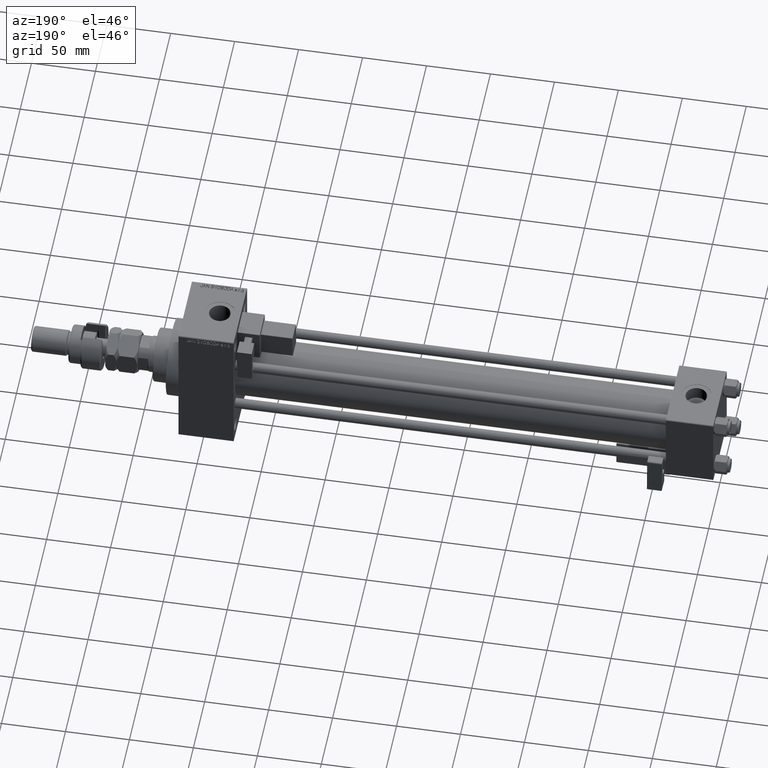
[diagram: clean part render]
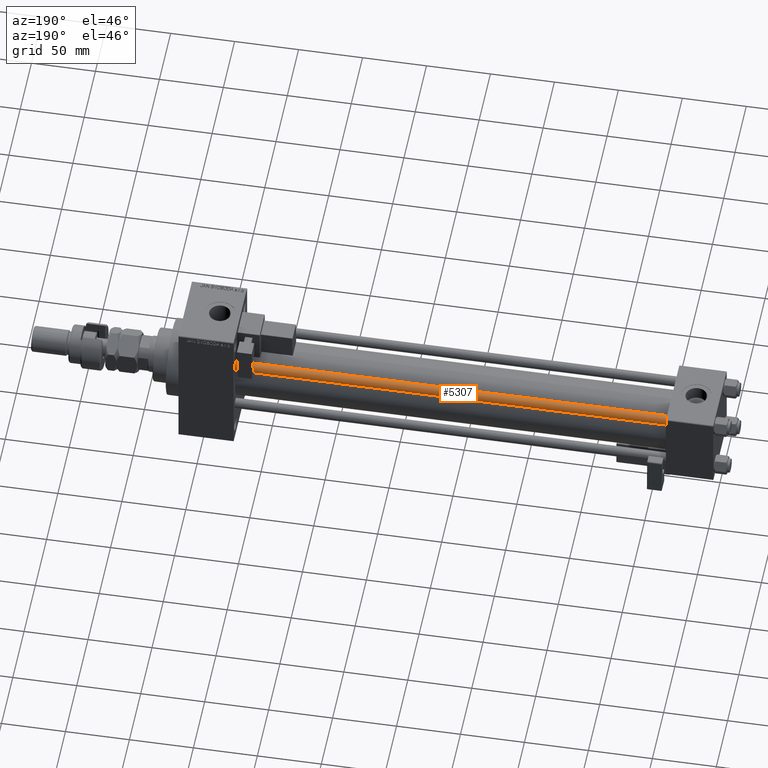
[diagram: same view with one face highlighted and labeled with its STEP entity id]
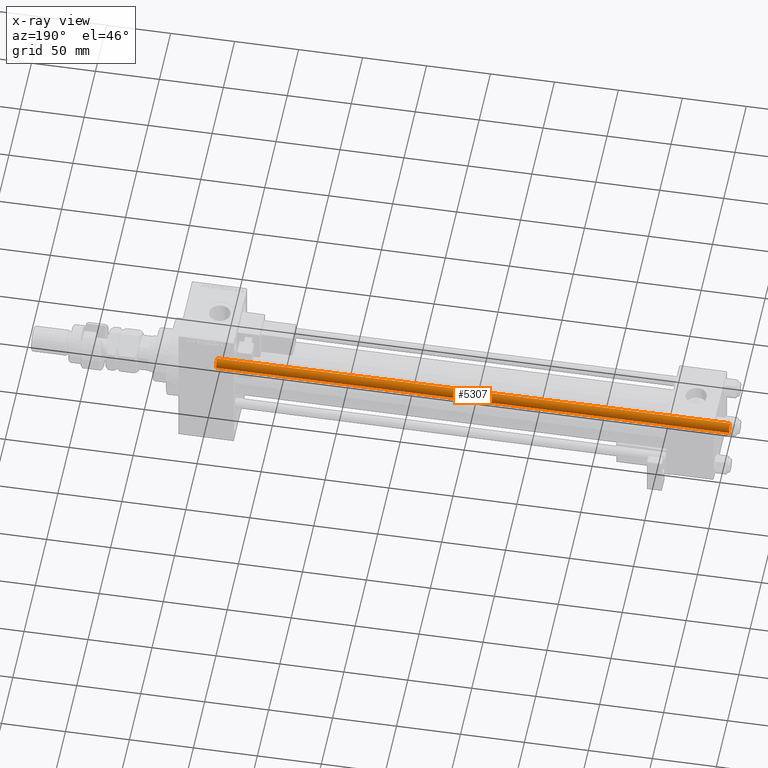
[diagram: x-ray of the same camera — body ghosted, the highlighted face saturated]
A machine part, auxiliary view. The second image highlights one B-rep face of the part: STEP entity #5307.
The next image is the same camera in x-ray: the body ghosted, the highlighted face saturated — about 0% of this face is hidden behind the body in this view.
In plain terms, the highlighted cylindrical surface (edge-blend (fillet) strip) has radius 4 mm, axis along (-1, -0, 0).
Its self-contained STEP definition (entity closure, byte-faithful):
#388 = CARTESIAN_POINT ( 'NONE',  ( 0.000000000000000000, 0.000000000000000000, 0.5000000000000004441 ) ) ;
#4632 = EDGE_LOOP ( 'NONE', ( #25087, #31323, #52019, #23583 ) ) ;
#5293 = VERTEX_POINT ( 'NONE', #30768 ) ;
#5307 = ADVANCED_FACE ( 'NONE', ( #51241 ), #47788, .T. ) ;
#5521 = EDGE_CURVE ( 'NONE', #5293, #8263, #49889, .T. ) ;
#7011 = DIRECTION ( 'NONE',  ( 0.000000000000000000, 0.000000000000000000, -1.000000000000000000 ) ) ;
#8263 = VERTEX_POINT ( 'NONE', #29465 ) ;
#8480 = AXIS2_PLACEMENT_3D ( 'NONE', #26913, #7011, #22660 ) ;
#9950 = AXIS2_PLACEMENT_3D ( 'NONE', #388, #28555, #48769 ) ;
#13466 = DIRECTION ( 'NONE',  ( -0.000000000000000000, -0.000000000000000000, -1.000000000000000000 ) ) ;
#14992 = CIRCLE ( 'NONE', #9950, 4.000000000000000000 ) ;
#16918 = CIRCLE ( 'NONE', #8480, 4.000000000000000000 ) ;
#21950 = CARTESIAN_POINT ( 'NONE',  ( -4.000000000000000000, 0.000000000000000000, 402.0000000000000000 ) ) ;
#22660 = DIRECTION ( 'NONE',  ( 1.000000000000000000, 0.000000000000000000, 0.000000000000000000 ) ) ;
#22689 = VERTEX_POINT ( 'NONE', #30874 ) ;
#23238 = CARTESIAN_POINT ( 'NONE',  ( 4.000000000000000000, 4.898587196589412829E-16, 402.0000000000000000 ) ) ;
#23583 = ORIENTED_EDGE ( 'NONE', *, *, #5521, .F. ) ;
#23731 = EDGE_CURVE ( 'NONE', #22689, #25548, #43712, .T. ) ;
#24705 = EDGE_CURVE ( 'NONE', #25548, #8263, #14992, .T. ) ;
#25087 = ORIENTED_EDGE ( 'NONE', *, *, #45239, .T. ) ;
#25423 = CARTESIAN_POINT ( 'NONE',  ( 4.000000000000000000, 4.898587196589412829E-16, 0.5000000000000004441 ) ) ;
#25548 = VERTEX_POINT ( 'NONE', #25423 ) ;
#26913 = CARTESIAN_POINT ( 'NONE',  ( 0.000000000000000000, 0.000000000000000000, 401.5000000000000568 ) ) ;
#27839 = AXIS2_PLACEMENT_3D ( 'NONE', #43784, #39008, #50720 ) ;
#28555 = DIRECTION ( 'NONE',  ( -0.000000000000000000, -0.000000000000000000, 1.000000000000000000 ) ) ;
#29465 = CARTESIAN_POINT ( 'NONE',  ( -4.000000000000000000, 0.000000000000000000, 0.5000000000000004441 ) ) ;
#30692 = DIRECTION ( 'NONE',  ( -0.000000000000000000, -0.000000000000000000, -1.000000000000000000 ) ) ;
#30768 = CARTESIAN_POINT ( 'NONE',  ( -4.000000000000000000, 0.000000000000000000, 401.5000000000000568 ) ) ;
#30874 = CARTESIAN_POINT ( 'NONE',  ( 4.000000000000000000, 4.898587196589412829E-16, 401.5000000000000568 ) ) ;
#31323 = ORIENTED_EDGE ( 'NONE', *, *, #23731, .T. ) ;
#37168 = VECTOR ( 'NONE', #13466, 1000.000000000000000 ) ;
#39008 = DIRECTION ( 'NONE',  ( -0.000000000000000000, -0.000000000000000000, -1.000000000000000000 ) ) ;
#41301 = VECTOR ( 'NONE', #30692, 1000.000000000000000 ) ;
#43712 = LINE ( 'NONE', #23238, #41301 ) ;
#43784 = CARTESIAN_POINT ( 'NONE',  ( 0.000000000000000000, 0.000000000000000000, 402.0000000000000000 ) ) ;
#45239 = EDGE_CURVE ( 'NONE', #5293, #22689, #16918, .T. ) ;
#47788 = CYLINDRICAL_SURFACE ( 'NONE', #27839, 4.000000000000000000 ) ;
#48769 = DIRECTION ( 'NONE',  ( 1.000000000000000000, 0.000000000000000000, 0.000000000000000000 ) ) ;
#49889 = LINE ( 'NONE', #21950, #37168 ) ;
#50720 = DIRECTION ( 'NONE',  ( -1.000000000000000000, 0.000000000000000000, 0.000000000000000000 ) ) ;
#51241 = FACE_OUTER_BOUND ( 'NONE', #4632, .T. ) ;
#52019 = ORIENTED_EDGE ( 'NONE', *, *, #24705, .T. ) ;